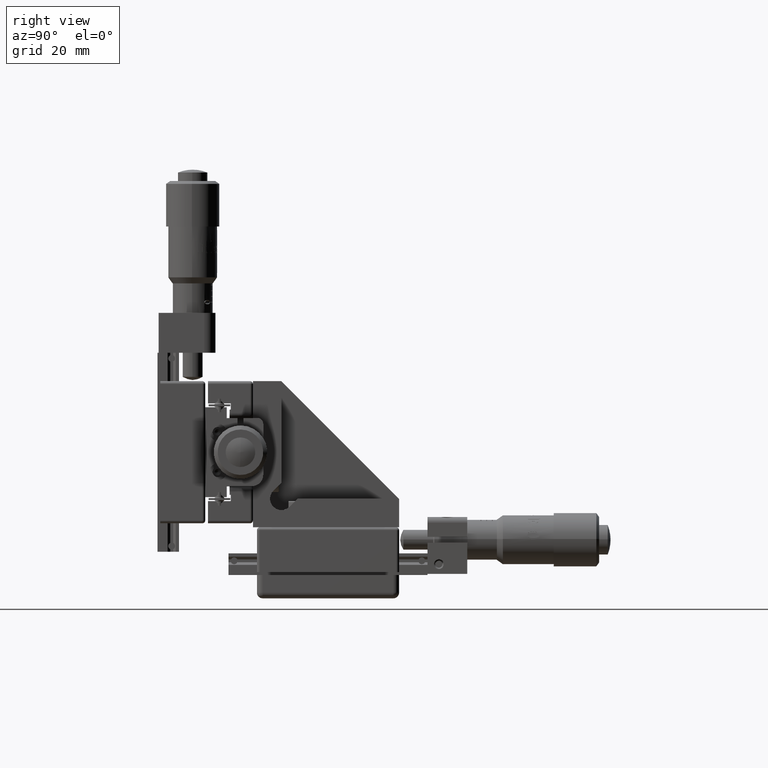
[diagram: clean part render]
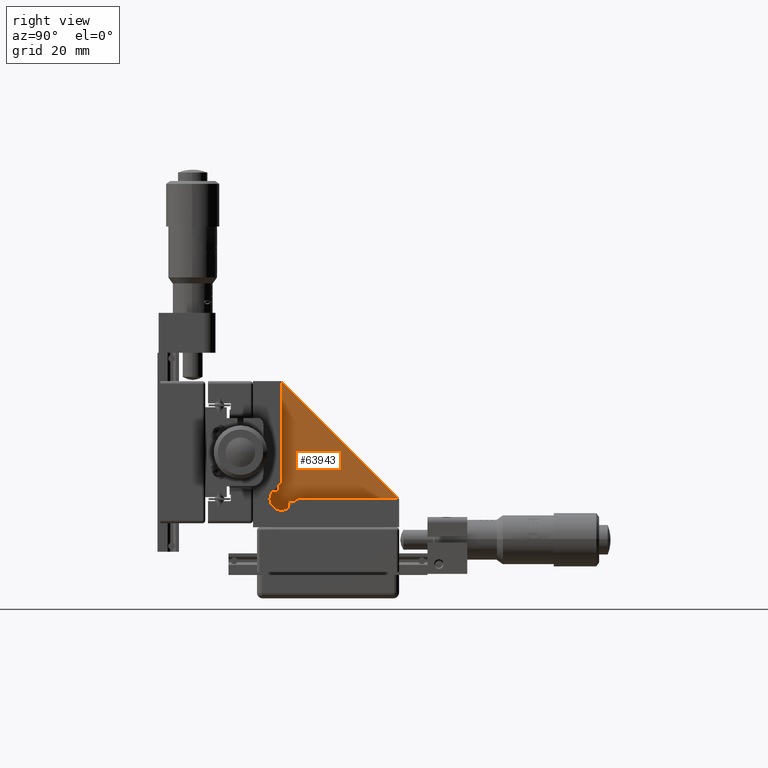
[diagram: same view with one face highlighted and labeled with its STEP entity id]
A machine part, right view. The second image highlights one B-rep face of the part: STEP entity #63943.
In plain terms, the highlighted planar face has unit normal (1, 0, 0).
Its self-contained STEP definition (entity closure, byte-faithful):
#629 = EDGE_LOOP ( 'NONE', ( #16386, #73084, #107165, #14598, #47125, #107736, #34593 ) ) ;
#1645 = DIRECTION ( 'NONE',  ( 0.0000000000000000000, 0.0000000000000000000, -1.000000000000000000 ) ) ;
#1984 = FACE_OUTER_BOUND ( 'NONE', #629, .T. ) ;
#3119 = PLANE ( 'NONE',  #7295 ) ;
#7295 = AXIS2_PLACEMENT_3D ( 'NONE', #19555, #106126, #1645 ) ;
#10600 = EDGE_CURVE ( 'NONE', #73367, #69491, #79864, .T. ) ;
#10737 = CARTESIAN_POINT ( 'NONE',  ( 2.500000000000864200, 21.80000000000006100, -8.200000000000871500 ) ) ;
#14598 = ORIENTED_EDGE ( 'NONE', *, *, #95214, .T. ) ;
#16386 = ORIENTED_EDGE ( 'NONE', *, *, #100802, .F. ) ;
#19555 = CARTESIAN_POINT ( 'NONE',  ( 2.500000000000864200, 21.80000000000006100, -8.200000000000871500 ) ) ;
#31386 = LINE ( 'NONE', #68448, #106387 ) ;
#31503 = CARTESIAN_POINT ( 'NONE',  ( 2.500000000000864200, 24.62842712474623500, -8.200000000000869700 ) ) ;
#33918 = AXIS2_PLACEMENT_3D ( 'NONE', #73137, #65160, #99895 ) ;
#34260 = CARTESIAN_POINT ( 'NONE',  ( 2.500000000000864200, 42.50000000000006400, -8.200000000000867900 ) ) ;
#34593 = ORIENTED_EDGE ( 'NONE', *, *, #54595, .T. ) ;
#34740 = DIRECTION ( 'NONE',  ( -0.0000000000000000000, 0.7071067811865475700, -0.7071067811865474600 ) ) ;
#35183 = CARTESIAN_POINT ( 'NONE',  ( 2.500000000000864200, 21.80000000000005400, 12.49999999999913500 ) ) ;
#38271 = VERTEX_POINT ( 'NONE', #67597 ) ;
#45553 = EDGE_CURVE ( 'NONE', #38271, #69716, #99747, .T. ) ;
#47125 = ORIENTED_EDGE ( 'NONE', *, *, #50204, .T. ) ;
#47462 = AXIS2_PLACEMENT_3D ( 'NONE', #10737, #65230, #73607 ) ;
#50204 = EDGE_CURVE ( 'NONE', #60561, #73367, #102124, .T. ) ;
#53433 = VECTOR ( 'NONE', #34740, 1000.000000000000000 ) ;
#54595 = EDGE_CURVE ( 'NONE', #69491, #75069, #74217, .T. ) ;
#57184 = VERTEX_POINT ( 'NONE', #35183 ) ;
#60561 = VERTEX_POINT ( 'NONE', #94424 ) ;
#60621 = CARTESIAN_POINT ( 'NONE',  ( 2.500000000000864200, 42.50000000000006400, -8.200000000000867900 ) ) ;
#63943 = ADVANCED_FACE ( 'NONE', ( #1984 ), #3119, .T. ) ;
#65160 = DIRECTION ( 'NONE',  ( 1.000000000000000000, 0.0000000000000000000, 0.0000000000000000000 ) ) ;
#65230 = DIRECTION ( 'NONE',  ( 1.000000000000000000, 0.0000000000000000000, 0.0000000000000000000 ) ) ;
#67597 = CARTESIAN_POINT ( 'NONE',  ( 2.500000000000864200, 21.80000000000006100, -5.371572875254661200 ) ) ;
#68448 = CARTESIAN_POINT ( 'NONE',  ( 2.500000000000864200, 21.80000000000006100, -5.371572875254661200 ) ) ;
#69491 = VERTEX_POINT ( 'NONE', #111233 ) ;
#69716 = VERTEX_POINT ( 'NONE', #97534 ) ;
#73084 = ORIENTED_EDGE ( 'NONE', *, *, #79993, .T. ) ;
#73137 = CARTESIAN_POINT ( 'NONE',  ( 2.500000000000864200, 21.80000000000006100, -8.200000000000871500 ) ) ;
#73367 = VERTEX_POINT ( 'NONE', #96631 ) ;
#73607 = DIRECTION ( 'NONE',  ( 0.0000000000000000000, 0.0000000000000000000, -1.000000000000000000 ) ) ;
#74217 = LINE ( 'NONE', #34260, #76981 ) ;
#75069 = VERTEX_POINT ( 'NONE', #92985 ) ;
#76182 = DIRECTION ( 'NONE',  ( 0.0000000000000000000, -0.7071067811865434600, -0.7071067811865516800 ) ) ;
#76981 = VECTOR ( 'NONE', #95255, 1000.000000000000000 ) ;
#79864 = LINE ( 'NONE', #31503, #96307 ) ;
#79993 = EDGE_CURVE ( 'NONE', #57184, #38271, #31386, .T. ) ;
#92985 = CARTESIAN_POINT ( 'NONE',  ( 2.500000000000864200, 42.50000000000006400, -8.200000000000867900 ) ) ;
#94424 = CARTESIAN_POINT ( 'NONE',  ( 2.500000000000864200, 21.80000000000006100, -10.20000000000087100 ) ) ;
#95214 = EDGE_CURVE ( 'NONE', #69716, #60561, #103030, .T. ) ;
#95255 = DIRECTION ( 'NONE',  ( -0.0000000000000000000, 1.000000000000000000, 9.706607740042965200E-017 ) ) ;
#95782 = LINE ( 'NONE', #60621, #53433 ) ;
#96307 = VECTOR ( 'NONE', #110340, 1000.000000000000000 ) ;
#96631 = CARTESIAN_POINT ( 'NONE',  ( 2.500000000000864200, 23.21421356237316400, -9.614213562373960200 ) ) ;
#97534 = CARTESIAN_POINT ( 'NONE',  ( 2.500000000000864200, 20.38578643762695500, -6.785786437627782800 ) ) ;
#99747 = LINE ( 'NONE', #102138, #109100 ) ;
#99895 = DIRECTION ( 'NONE',  ( 0.0000000000000000000, 0.0000000000000000000, -1.000000000000000000 ) ) ;
#100802 = EDGE_CURVE ( 'NONE', #57184, #75069, #95782, .T. ) ;
#102124 = CIRCLE ( 'NONE', #47462, 2.000000000000000000 ) ;
#102138 = CARTESIAN_POINT ( 'NONE',  ( 2.500000000000864200, 21.80000000000006100, -5.371572875254661200 ) ) ;
#103030 = CIRCLE ( 'NONE', #33918, 2.000000000000000000 ) ;
#106126 = DIRECTION ( 'NONE',  ( 1.000000000000000000, 0.0000000000000000000, 0.0000000000000000000 ) ) ;
#106387 = VECTOR ( 'NONE', #111487, 1000.000000000000000 ) ;
#107165 = ORIENTED_EDGE ( 'NONE', *, *, #45553, .T. ) ;
#107736 = ORIENTED_EDGE ( 'NONE', *, *, #10600, .T. ) ;
#109100 = VECTOR ( 'NONE', #76182, 1000.000000000000000 ) ;
#110340 = DIRECTION ( 'NONE',  ( -0.0000000000000000000, 0.7071067811865439100, 0.7071067811865512400 ) ) ;
#111233 = CARTESIAN_POINT ( 'NONE',  ( 2.500000000000864200, 24.62842712474623500, -8.200000000000869700 ) ) ;
#111487 = DIRECTION ( 'NONE',  ( -0.0000000000000000000, 2.911982322012894900E-016, -1.000000000000000000 ) ) ;